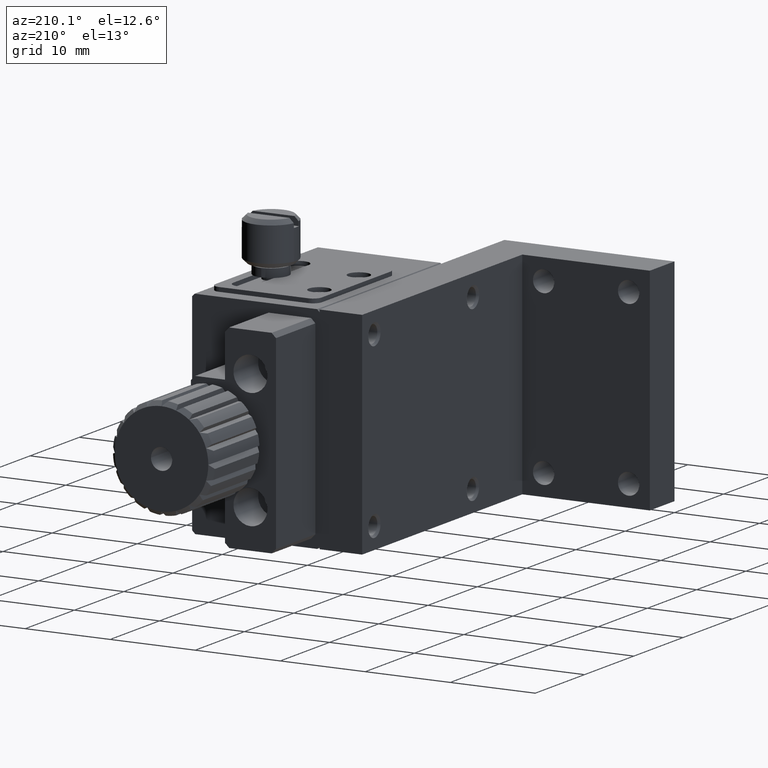
[diagram: clean part render]
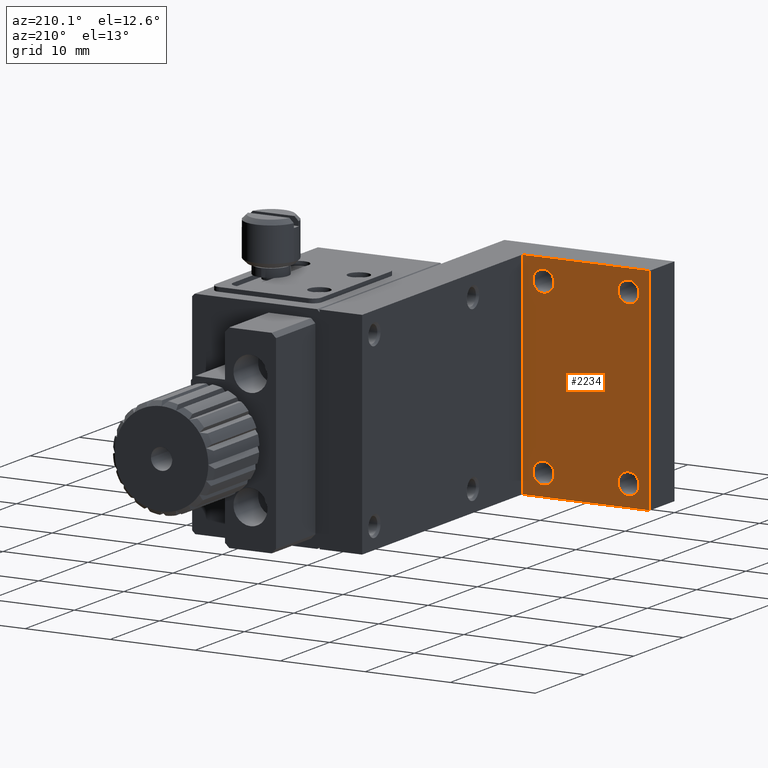
[diagram: same view with one face highlighted and labeled with its STEP entity id]
A machine part, auxiliary view. The second image highlights one B-rep face of the part: STEP entity #2234.
In plain terms, the highlighted planar face has unit normal (0, 1, 0).
Its self-contained STEP definition (entity closure, byte-faithful):
#465 = CARTESIAN_POINT ( 'NONE',  ( -17.50000000000000000, 5.000000000000000000, -3.750000000000000000 ) ) ;
#505 = AXIS2_PLACEMENT_3D ( 'NONE', #6834, #7535, #5613 ) ;
#552 = EDGE_LOOP ( 'NONE', ( #2217 ) ) ;
#661 = FACE_OUTER_BOUND ( 'NONE', #5959, .T. ) ;
#825 = DIRECTION ( 'NONE',  ( 0.000000000000000000, -0.000000000000000000, 1.000000000000000000 ) ) ;
#1006 = EDGE_CURVE ( 'NONE', #8002, #4516, #5515, .T. ) ;
#1342 = AXIS2_PLACEMENT_3D ( 'NONE', #5357, #5317, #4098 ) ;
#1414 = ORIENTED_EDGE ( 'NONE', *, *, #3923, .T. ) ;
#1694 = CARTESIAN_POINT ( 'NONE',  ( -20.00000000000000000, 5.000000000000000000, -25.00000000000000000 ) ) ;
#1844 = VERTEX_POINT ( 'NONE', #5949 ) ;
#1925 = ORIENTED_EDGE ( 'NONE', *, *, #7785, .F. ) ;
#1952 = CIRCLE ( 'NONE', #7661, 1.249999999999999778 ) ;
#1965 = ORIENTED_EDGE ( 'NONE', *, *, #6278, .F. ) ;
#2001 = CARTESIAN_POINT ( 'NONE',  ( 0.000000000000000000, 5.000000000000000000, 0.000000000000000000 ) ) ;
#2146 = EDGE_LOOP ( 'NONE', ( #4640 ) ) ;
#2217 = ORIENTED_EDGE ( 'NONE', *, *, #5006, .T. ) ;
#2234 = ADVANCED_FACE ( 'NONE', ( #661, #5417, #7912, #4630, #3370 ), #5985, .T. ) ;
#2273 = VERTEX_POINT ( 'NONE', #2317 ) ;
#2317 = CARTESIAN_POINT ( 'NONE',  ( -7.500000000000000000, 5.000000000000000000, -3.750000000000000000 ) ) ;
#2426 = VERTEX_POINT ( 'NONE', #3057 ) ;
#2758 = VERTEX_POINT ( 'NONE', #7949 ) ;
#2916 = DIRECTION ( 'NONE',  ( 0.000000000000000000, 0.000000000000000000, 1.000000000000000000 ) ) ;
#2920 = CARTESIAN_POINT ( 'NONE',  ( -7.500000000000000000, 5.000000000000000000, -22.50000000000000000 ) ) ;
#3057 = CARTESIAN_POINT ( 'NONE',  ( -5.000000000000000000, 4.999999999999999112, 0.000000000000000000 ) ) ;
#3074 = ORIENTED_EDGE ( 'NONE', *, *, #7998, .T. ) ;
#3132 = VERTEX_POINT ( 'NONE', #6409 ) ;
#3370 = FACE_BOUND ( 'NONE', #2146, .T. ) ;
#3447 = CIRCLE ( 'NONE', #505, 1.250000000000001110 ) ;
#3606 = DIRECTION ( 'NONE',  ( -1.000000000000000000, -0.000000000000000000, 0.000000000000000000 ) ) ;
#3657 = EDGE_LOOP ( 'NONE', ( #5423 ) ) ;
#3859 = VECTOR ( 'NONE', #825, 1000.000000000000000 ) ;
#3923 = EDGE_CURVE ( 'NONE', #4516, #1844, #8146, .T. ) ;
#4098 = DIRECTION ( 'NONE',  ( 0.000000000000000000, 0.000000000000000000, -1.000000000000000000 ) ) ;
#4231 = CARTESIAN_POINT ( 'NONE',  ( -5.000000000000000000, 4.999999999999999112, -25.00000000000000000 ) ) ;
#4382 = ORIENTED_EDGE ( 'NONE', *, *, #1006, .T. ) ;
#4446 = EDGE_LOOP ( 'NONE', ( #3074 ) ) ;
#4516 = VERTEX_POINT ( 'NONE', #1694 ) ;
#4612 = DIRECTION ( 'NONE',  ( -1.000000000000000000, -0.000000000000000000, 0.000000000000000000 ) ) ;
#4630 = FACE_BOUND ( 'NONE', #552, .T. ) ;
#4640 = ORIENTED_EDGE ( 'NONE', *, *, #7979, .T. ) ;
#4719 = DIRECTION ( 'NONE',  ( 0.000000000000000000, 1.000000000000000000, 0.000000000000000000 ) ) ;
#4832 = CIRCLE ( 'NONE', #6779, 1.250000000000001110 ) ;
#5006 = EDGE_CURVE ( 'NONE', #2758, #2758, #3447, .T. ) ;
#5184 = LINE ( 'NONE', #2001, #5532 ) ;
#5317 = DIRECTION ( 'NONE',  ( 0.000000000000000000, -1.000000000000000000, 0.000000000000000000 ) ) ;
#5331 = DIRECTION ( 'NONE',  ( 0.000000000000000000, -0.000000000000000000, 1.000000000000000000 ) ) ;
#5357 = CARTESIAN_POINT ( 'NONE',  ( -17.50000000000000000, 5.000000000000000000, -2.500000000000000000 ) ) ;
#5417 = FACE_BOUND ( 'NONE', #3657, .T. ) ;
#5423 = ORIENTED_EDGE ( 'NONE', *, *, #7182, .T. ) ;
#5515 = LINE ( 'NONE', #6780, #7985 ) ;
#5532 = VECTOR ( 'NONE', #4612, 1000.000000000000000 ) ;
#5539 = DIRECTION ( 'NONE',  ( 0.000000000000000000, -1.000000000000000000, 0.000000000000000000 ) ) ;
#5613 = DIRECTION ( 'NONE',  ( 0.000000000000000000, 0.000000000000000000, -1.000000000000000000 ) ) ;
#5619 = DIRECTION ( 'NONE',  ( 0.000000000000000000, 0.000000000000000000, -1.000000000000000000 ) ) ;
#5721 = DIRECTION ( 'NONE',  ( 0.000000000000000000, -1.000000000000000000, 0.000000000000000000 ) ) ;
#5949 = CARTESIAN_POINT ( 'NONE',  ( -20.00000000000000000, 5.000000000000000000, 0.000000000000000000 ) ) ;
#5959 = EDGE_LOOP ( 'NONE', ( #4382, #1414, #1925, #1965 ) ) ;
#5985 = PLANE ( 'NONE',  #6606 ) ;
#6139 = CARTESIAN_POINT ( 'NONE',  ( -5.000000000000000000, 4.999999999999997335, -25.00000000000000000 ) ) ;
#6278 = EDGE_CURVE ( 'NONE', #8002, #2426, #6960, .T. ) ;
#6409 = CARTESIAN_POINT ( 'NONE',  ( -7.500000000000000000, 5.000000000000000000, -23.75000000000000000 ) ) ;
#6606 = AXIS2_PLACEMENT_3D ( 'NONE', #8082, #4719, #5331 ) ;
#6779 = AXIS2_PLACEMENT_3D ( 'NONE', #2920, #5539, #5619 ) ;
#6780 = CARTESIAN_POINT ( 'NONE',  ( 0.000000000000000000, 5.000000000000000000, -25.00000000000000000 ) ) ;
#6799 = CARTESIAN_POINT ( 'NONE',  ( -20.00000000000000000, 5.000000000000000000, -25.00000000000000000 ) ) ;
#6804 = VECTOR ( 'NONE', #2916, 1000.000000000000000 ) ;
#6834 = CARTESIAN_POINT ( 'NONE',  ( -17.50000000000000000, 5.000000000000000000, -22.50000000000000000 ) ) ;
#6960 = LINE ( 'NONE', #6139, #6804 ) ;
#6984 = CARTESIAN_POINT ( 'NONE',  ( -7.500000000000000000, 5.000000000000000000, -2.500000000000000000 ) ) ;
#7182 = EDGE_CURVE ( 'NONE', #2273, #2273, #1952, .T. ) ;
#7535 = DIRECTION ( 'NONE',  ( 0.000000000000000000, -1.000000000000000000, 0.000000000000000000 ) ) ;
#7618 = CIRCLE ( 'NONE', #1342, 1.249999999999999778 ) ;
#7661 = AXIS2_PLACEMENT_3D ( 'NONE', #6984, #5721, #8282 ) ;
#7785 = EDGE_CURVE ( 'NONE', #2426, #1844, #5184, .T. ) ;
#7912 = FACE_BOUND ( 'NONE', #4446, .T. ) ;
#7949 = CARTESIAN_POINT ( 'NONE',  ( -17.50000000000000000, 5.000000000000000000, -23.75000000000000000 ) ) ;
#7979 = EDGE_CURVE ( 'NONE', #8323, #8323, #7618, .T. ) ;
#7985 = VECTOR ( 'NONE', #3606, 1000.000000000000000 ) ;
#7998 = EDGE_CURVE ( 'NONE', #3132, #3132, #4832, .T. ) ;
#8002 = VERTEX_POINT ( 'NONE', #4231 ) ;
#8082 = CARTESIAN_POINT ( 'NONE',  ( -5.000000000000000000, 5.000000000000000000, -25.00000000000000000 ) ) ;
#8146 = LINE ( 'NONE', #6799, #3859 ) ;
#8282 = DIRECTION ( 'NONE',  ( 0.000000000000000000, 0.000000000000000000, -1.000000000000000000 ) ) ;
#8323 = VERTEX_POINT ( 'NONE', #465 ) ;